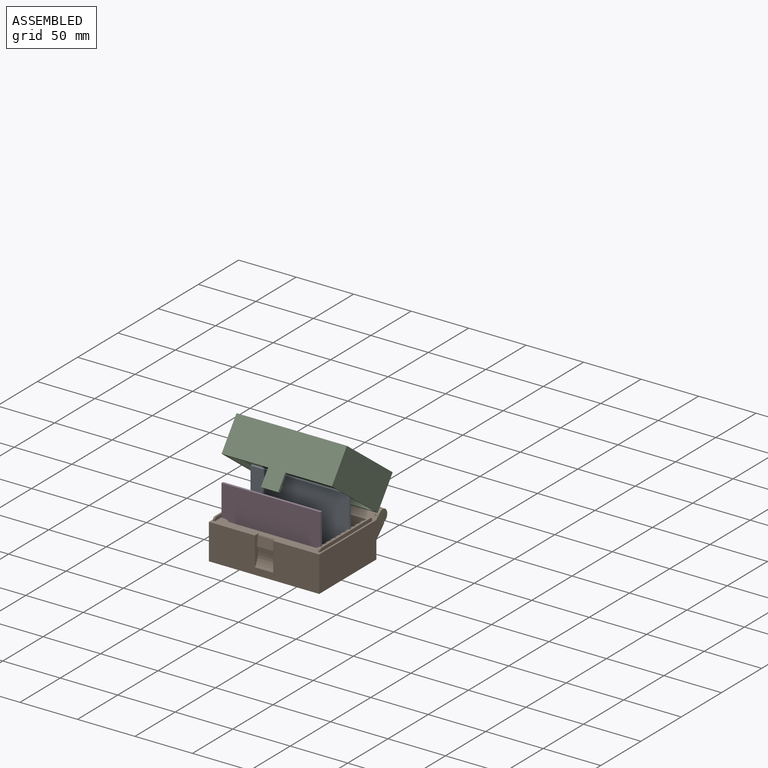
[diagram: assembled view]
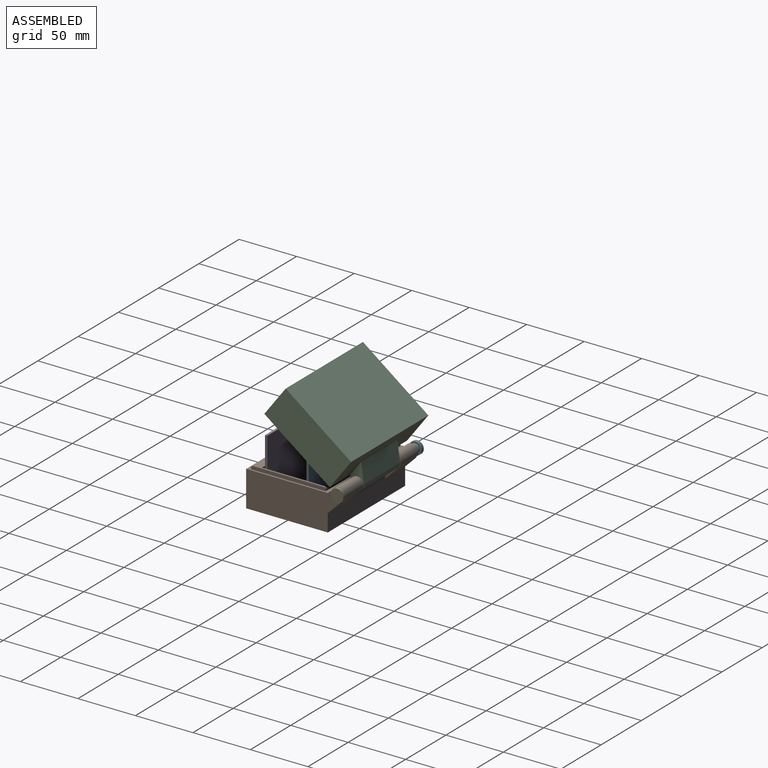
[diagram: assembled view, second angle]
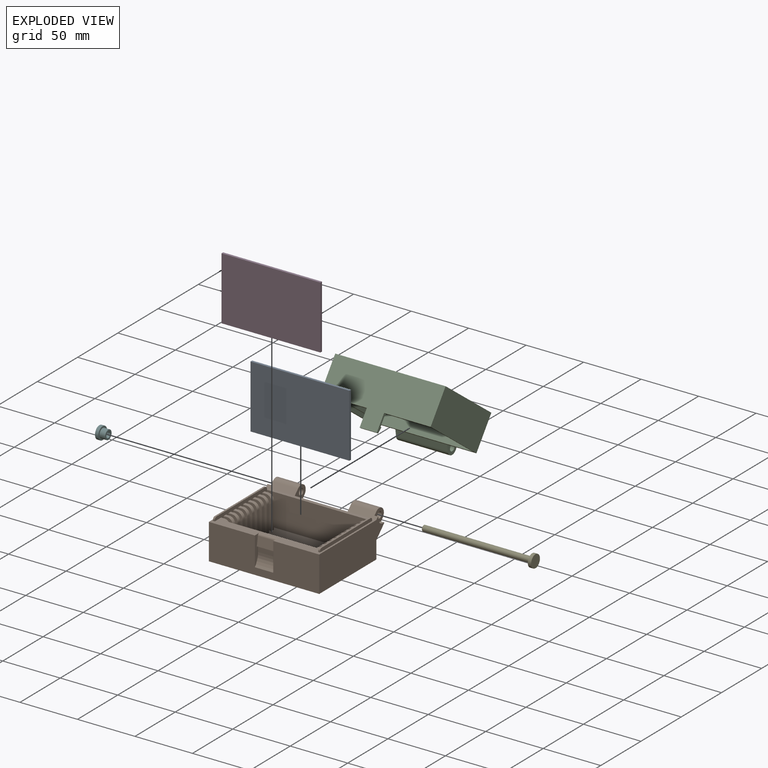
[diagram: exploded view]
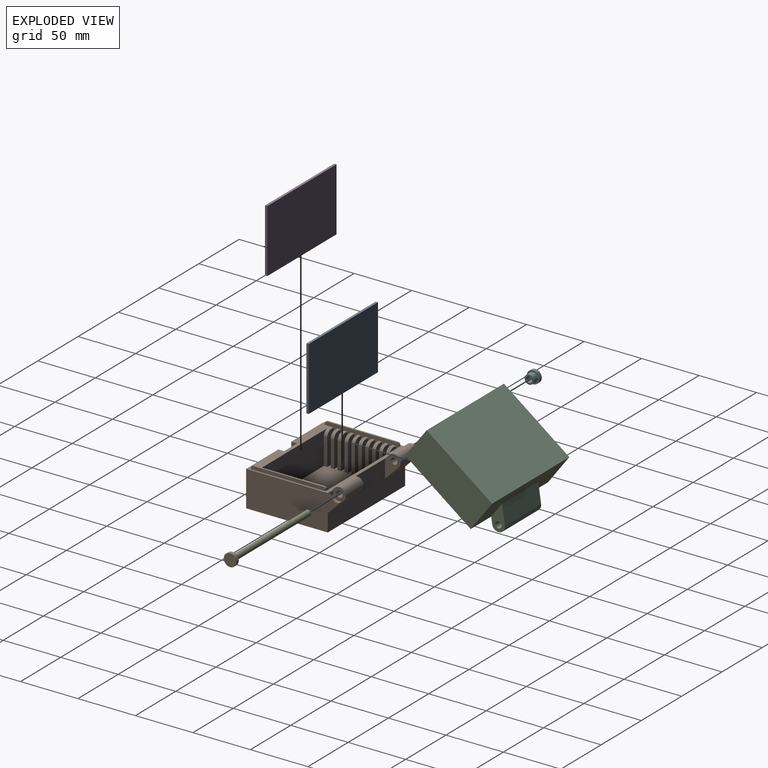
[diagram: exploded view, second angle]
ASSEMBLY  parts=6 mates=5
PART A: 6 faces, bbox 86x55x2 mm
  f0: plane 55x2mm, normal (1,0,0), area 110mm2, adj f1,f3,f4,f5
  f1: plane 86x2mm, normal (0,1,0), area 172mm2, adj f0,f2,f4,f5
  f2: plane 55x2mm, normal (-1,0,0), area 110mm2, adj f1,f3,f4,f5
  f3: plane 86x2mm, normal (0,-1,0), area 172mm2, adj f0,f2,f4,f5
  f4: plane 86x55mm, normal (0,0,1), area 4730mm2, adj f0,f1,f2,f3
  f5: plane 86x55mm, normal (0,0,-1), area 4730mm2, adj f0,f1,f2,f3
PART B: 146 faces, bbox 96x84.6x36.7 mm
  f0: plane 25x5.71mm, normal (1,0,0), area 80.3mm2, adj f1,f2,f3,f122,f123,f124,f125
  f1: plane 16x5mm, normal (0,-1,0), area 80mm2, adj f0,f121,f123,f125
  f2: plane 96x71mm, normal (0,0,1), area 1148.3mm2, adj f0,f3,f23,f24,f25,f26,f27,f28
  f3: plane 96x31mm, normal (0,-1,0), area 2576mm2, adj f0,f2,f28,f29,f31,f121,f125
  f4: plane 3x3mm, normal (0,0,1), area 9mm2, adj f24,f73,f74,f131
  f5: plane 3x3mm, normal (0,0,1), area 9mm2, adj f24,f76,f77,f130
  f6: plane 3x3mm, normal (0,0,1), area 9mm2, adj f24,f64,f65,f134
  f7: plane 3x3mm, normal (0,0,1), area 9mm2, adj f24,f87,f89,f126
  f8: plane 3x3mm, normal (0,0,1), area 9mm2, adj f24,f61,f62,f135
  f9: plane 3x3mm, normal (0,0,1), area 9mm2, adj f24,f84,f86,f127
  f10: plane 3x3mm, normal (0,0,1), area 9mm2, adj f24,f67,f69,f133
  f11: plane 3x3mm, normal (0,0,1), area 9mm2, adj f24,f81,f82,f128
  f12: plane 3x3mm, normal (0,0,1), area 9mm2, adj f24,f70,f72,f132
  f13: plane 3x3mm, normal (0,0,1), area 9mm2, adj f26,f58,f60,f136
  f14: plane 3x3mm, normal (0,0,1), area 9mm2, adj f26,f55,f57,f137
  f15: plane 3x3mm, normal (0,0,1), area 9mm2, adj f26,f52,f54,f138
  f16: plane 3x3mm, normal (0,0,1), area 9mm2, adj f26,f49,f51,f139
  f17: plane 3x3mm, normal (0,0,1), area 9mm2, adj f26,f46,f48,f140
  f18: plane 3x3mm, normal (0,0,1), area 9mm2, adj f26,f43,f45,f141
  f19: plane 3x3mm, normal (0,0,1), area 9mm2, adj f26,f40,f42,f142
  f20: plane 3x3mm, normal (0,0,1), area 9mm2, adj f26,f37,f39,f143
  f21: plane 3x3mm, normal (0,0,1), area 9mm2, adj f26,f34,f36,f144
  f22: cylinder r=2.75mm len=17mm, axis (-1,0,0), area 293.7mm2, adj f102,f108
  f23: plane 96x31mm, normal (0,1,0), area 2186mm2, adj f2,f28,f29,f31,f92,f94,f100,f102
  f24: plane 64.9x31mm, normal (-1,0,0), area 1032.7mm2, adj f2,f4,f5,f6,f7,f8,f9,f10
  f25: plane 84x28mm, normal (0,1,0), area 2082.7mm2, adj f2,f30,f33,f80,f129,f145
  f26: plane 64.9x31mm, normal (1,0,0), area 1032.7mm2, adj f2,f13,f14,f15,f16,f17,f18,f19
  f27: plane 90x28mm, normal (0,-1,0), area 2520mm2, adj f2,f24,f26,f30
  f28: plane 80.73x32.83mm, normal (1,0,0), area 2276.8mm2, adj f2,f3,f23,f31,f91,f92,f95,f97
  f29: plane 80.73x32.83mm, normal (-1,0,0), area 2276.8mm2, adj f2,f3,f23,f31,f99,f100,f103,f105
  f30: plane 90x60mm, normal (0,0,1), area 4920mm2, adj f24,f25,f26,f27,f32,f33,f34,f35
  f31: plane 96x71mm, normal (0,0,-1), area 6816mm2, adj f3,f23,f28,f29
  f32: plane 28x8mm, normal (0,1,0), area 218.6mm2, adj f2,f26,f30,f33,f145
  f33: plane 23x3mm, normal (1,0,0), area 69mm2, adj f25,f30,f32,f145
  f34: plane 28x8mm, normal (0,-1,0), area 218.6mm2, adj f21,f26,f30,f35,f144
  f35: plane 23x3mm, normal (1,0,0), area 69mm2, adj f30,f34,f36,f144
  f36: plane 28x8mm, normal (0,1,0), area 218.6mm2, adj f21,f26,f30,f35,f144
  f37: plane 28x8mm, normal (0,-1,0), area 218.6mm2, adj f20,f26,f30,f38,f143
  f38: plane 23x3mm, normal (1,0,0), area 69mm2, adj f30,f37,f39,f143
  f39: plane 28x8mm, normal (0,1,0), area 218.6mm2, adj f20,f26,f30,f38,f143
  f40: plane 28x8mm, normal (0,-1,0), area 218.6mm2, adj f19,f26,f30,f41,f142
  f41: plane 23x3mm, normal (1,0,0), area 69mm2, adj f30,f40,f42,f142
  f42: plane 28x8mm, normal (0,1,0), area 218.6mm2, adj f19,f26,f30,f41,f142
  f43: plane 28x8mm, normal (0,-1,0), area 218.6mm2, adj f18,f26,f30,f44,f141
  f44: plane 23x3mm, normal (1,0,0), area 69mm2, adj f30,f43,f45,f141
  f45: plane 28x8mm, normal (0,1,0), area 218.6mm2, adj f18,f26,f30,f44,f141
  f46: plane 28x8mm, normal (0,-1,0), area 218.6mm2, adj f17,f26,f30,f47,f140
  f47: plane 23x3mm, normal (1,0,0), area 69mm2, adj f30,f46,f48,f140
  f48: plane 28x8mm, normal (0,1,0), area 218.6mm2, adj f17,f26,f30,f47,f140
  f49: plane 28x8mm, normal (0,-1,0), area 218.6mm2, adj f16,f26,f30,f50,f139
  f50: plane 23x3mm, normal (1,0,0), area 69mm2, adj f30,f49,f51,f139
  f51: plane 28x8mm, normal (0,1,0), area 218.6mm2, adj f16,f26,f30,f50,f139
  f52: plane 28x8mm, normal (0,-1,0), area 218.6mm2, adj f15,f26,f30,f53,f138
  f53: plane 23x3mm, normal (1,0,0), area 69mm2, adj f30,f52,f54,f138
  f54: plane 28x8mm, normal (0,1,0), area 218.6mm2, adj f15,f26,f30,f53,f138
  f55: plane 28x8mm, normal (0,-1,0), area 218.6mm2, adj f14,f26,f30,f56,f137
  f56: plane 23x3mm, normal (1,0,0), area 69mm2, adj f30,f55,f57,f137
  f57: plane 28x8mm, normal (0,1,0), area 218.6mm2, adj f14,f26,f30,f56,f137
  f58: plane 28x8mm, normal (0,-1,0), area 218.6mm2, adj f13,f26,f30,f59,f136
  f59: plane 23x3mm, normal (1,0,0), area 69mm2, adj f30,f58,f60,f136
  f60: plane 28x8mm, normal (0,1,0), area 218.6mm2, adj f13,f26,f30,f59,f136
  f61: plane 28x8mm, normal (0,-1,0), area 218.6mm2, adj f8,f24,f30,f63,f135
  f62: plane 28x8mm, normal (0,1,0), area 218.6mm2, adj f8,f24,f30,f63,f135
  f63: plane 23x3mm, normal (-1,0,0), area 69mm2, adj f30,f61,f62,f135
  f64: plane 28x8mm, normal (0,-1,0), area 218.6mm2, adj f6,f24,f30,f66,f134
  f65: plane 28x8mm, normal (0,1,0), area 218.6mm2, adj f6,f24,f30,f66,f134
  f66: plane 23x3mm, normal (-1,0,0), area 69mm2, adj f30,f64,f65,f134
  f67: plane 28x8mm, normal (0,1,0), area 218.6mm2, adj f10,f24,f30,f68,f133
  f68: plane 23x3mm, normal (-1,0,0), area 69mm2, adj f30,f67,f69,f133
  f69: plane 28x8mm, normal (0,-1,0), area 218.6mm2, adj f10,f24,f30,f68,f133
  f70: plane 28x8mm, normal (0,1,0), area 218.6mm2, adj f12,f24,f30,f71,f132
  f71: plane 23x3mm, normal (-1,0,0), area 69mm2, adj f30,f70,f72,f132
  f72: plane 28x8mm, normal (0,-1,0), area 218.6mm2, adj f12,f24,f30,f71,f132
  f73: plane 28x8mm, normal (0,-1,0), area 218.6mm2, adj f4,f24,f30,f75,f131
  f74: plane 28x8mm, normal (0,1,0), area 218.6mm2, adj f4,f24,f30,f75,f131
  f75: plane 23x3mm, normal (-1,0,0), area 69mm2, adj f30,f73,f74,f131
  f76: plane 28x8mm, normal (0,-1,0), area 218.6mm2, adj f5,f24,f30,f78,f130
  f77: plane 28x8mm, normal (0,1,0), area 218.6mm2, adj f5,f24,f30,f78,f130
  f78: plane 23x3mm, normal (-1,0,0), area 69mm2, adj f30,f76,f77,f130
  f79: plane 28x8mm, normal (0,1,0), area 218.6mm2, adj f2,f24,f30,f80,f129
  f80: plane 23x3mm, normal (-1,0,0), area 69mm2, adj f25,f30,f79,f129
  f81: plane 28x8mm, normal (0,-1,0), area 218.6mm2, adj f11,f24,f30,f83,f128
  f82: plane 28x8mm, normal (0,1,0), area 218.6mm2, adj f11,f24,f30,f83,f128
  f83: plane 23x3mm, normal (-1,0,0), area 69mm2, adj f30,f81,f82,f128
  f84: plane 28x8mm, normal (0,1,0), area 218.6mm2, adj f9,f24,f30,f85,f127
  f85: plane 23x3mm, normal (-1,0,0), area 69mm2, adj f30,f84,f86,f127
  f86: plane 28x8mm, normal (0,-1,0), area 218.6mm2, adj f9,f24,f30,f85,f127
  f87: plane 28x8mm, normal (0,1,0), area 218.6mm2, adj f7,f24,f30,f88,f126
  f88: plane 23x3mm, normal (-1,0,0), area 69mm2, adj f30,f87,f89,f126
  f89: plane 28x8mm, normal (0,-1,0), area 218.6mm2, adj f7,f24,f30,f88,f126
  f90: cylinder r=2.75mm len=22mm, axis (1,0,0), area 380.1mm2, adj f94,f96
  f91: plane 25x4.05mm, normal (0,-0.71,0.71), area 133.2mm2, adj f2,f28,f93,f94,f96,f97
  f92: plane 25x11.95mm, normal (0,0.71,-0.71), area 412.5mm2, adj f23,f28,f93,f94,f96,f98
  f93: cylinder r=5.59mm len=22mm, axis (1,0,0), area 386.1mm2, adj f91,f92,f94,f96
  f94: plane 21.49x13.59mm, normal (-1,0,0), area 151.7mm2, adj f23,f90,f91,f92,f93
  f95: cylinder r=5.59mm len=6.72mm, axis (1,0,0), area 33.2mm2, adj f28,f96,f97,f98
  f96: plane 11.9x11.9mm, normal (1,0,0), area 75.8mm2, adj f90,f91,f92,f93,f95,f97,f98
  f97: cylinder r=0.5mm len=3mm, axis (1,0,0), area 3.8mm2, adj f28,f91,f95,f96
  f98: cylinder r=0.5mm len=3mm, axis (1,0,0), area 3.8mm2, adj f28,f92,f95,f96
  f99: plane 25x4.05mm, normal (0,-0.71,0.71), area 133.2mm2, adj f2,f29,f101,f102,f104,f105
  f100: plane 25x11.95mm, normal (0,0.71,-0.71), area 412.5mm2, adj f23,f29,f101,f102,f104,f106
  f101: cylinder r=5.59mm len=22mm, axis (-1,0,0), area 386.1mm2, adj f99,f100,f102,f104
  f102: plane 21.49x13.59mm, normal (1,0,0), area 151.7mm2, adj f22,f23,f99,f100,f101
  f103: cylinder r=5.59mm len=6.72mm, axis (-1,0,0), area 33.2mm2, adj f29,f104,f105,f106
  f104: plane 11.9x11.9mm, normal (-1,0,0), area 48.1mm2, adj f99,f100,f101,f103,f105,f106,f107
  f105: cylinder r=0.5mm len=3mm, axis (-1,0,0), area 3.8mm2, adj f29,f99,f103,f104
  f106: cylinder r=0.5mm len=3mm, axis (-1,0,0), area 3.8mm2, adj f29,f100,f103,f104
  f107: cylinder r=4.05mm len=8.1mm, axis (-1,0,0), area 127.2mm2, adj f104,f108
  f108: plane 8.1x8.1mm, normal (-1,0,0), area 27.8mm2, adj f22,f107
  f109: plane 1.5x1mm, normal (0,1,0), area 1.5mm2, adj f2,f26,f110,f120
  f110: plane 64.8x3mm, normal (-1,0,0), area 192.7mm2, adj f2,f109,f111,f112,f119,f120
  f111: plane 1.5x1mm, normal (0,-1,0), area 1.5mm2, adj f2,f26,f110,f119
  f112: plane 60.8x1.5mm, normal (0,0,1), area 91.2mm2, adj f26,f110,f119,f120
  f113: plane 64.8x3mm, normal (1,0,0), area 192.7mm2, adj f2,f114,f115,f116,f117,f118
  f114: plane 1.5x1mm, normal (0,1,0), area 1.5mm2, adj f2,f24,f113,f118
  f115: plane 1.5x1mm, normal (0,-1,0), area 1.5mm2, adj f2,f24,f113,f117
  f116: plane 60.8x1.5mm, normal (0,0,1), area 91.2mm2, adj f24,f113,f117,f118
  f117: cylinder r=2mm len=2mm, axis (-1,0,0), area 4.7mm2, adj f24,f113,f115,f116
  f118: cylinder r=2mm len=2mm, axis (1,0,0), area 4.7mm2, adj f24,f113,f114,f116
  f119: cylinder r=2mm len=2mm, axis (-1,0,0), area 4.7mm2, adj f26,f110,f111,f112
  f120: cylinder r=2mm len=2mm, axis (1,0,0), area 4.7mm2, adj f26,f109,f110,f112
  f121: plane 25x5.71mm, normal (-1,0,0), area 80.3mm2, adj f1,f2,f3,f122,f123,f124,f125
  f122: plane 16x7.81mm, normal (0,-0.99,0.16), area 126.5mm2, adj f0,f121,f123,f124
  f123: plane 16x1.5mm, normal (0,0,-1), area 24mm2, adj f0,f1,f121,f122
  f124: cylinder r=2mm len=16mm, axis (-1,0,0), area 45.3mm2, adj f0,f2,f121,f122
  f125: cylinder r=15.78mm len=16mm, axis (-1,0,0), area 183.8mm2, adj f0,f1,f3,f121
  f126: cylinder r=5mm len=5mm, axis (0,1,0), area 23.6mm2, adj f7,f87,f88,f89
  f127: cylinder r=5mm len=5mm, axis (0,1,0), area 23.6mm2, adj f9,f84,f85,f86
  f128: cylinder r=5mm len=5mm, axis (0,1,0), area 23.6mm2, adj f11,f81,f82,f83
  f129: cylinder r=5mm len=5mm, axis (0,1,0), area 23.6mm2, adj f2,f25,f79,f80
  f130: cylinder r=5mm len=5mm, axis (0,1,0), area 23.6mm2, adj f5,f76,f77,f78
  f131: cylinder r=5mm len=5mm, axis (0,1,0), area 23.6mm2, adj f4,f73,f74,f75
  f132: cylinder r=5mm len=5mm, axis (0,1,0), area 23.6mm2, adj f12,f70,f71,f72
  f133: cylinder r=5mm len=5mm, axis (0,1,0), area 23.6mm2, adj f10,f67,f68,f69
  f134: cylinder r=5mm len=5mm, axis (0,1,0), area 23.6mm2, adj f6,f64,f65,f66
  f135: cylinder r=5mm len=5mm, axis (0,1,0), area 23.6mm2, adj f8,f61,f62,f63
  f136: cylinder r=5mm len=5mm, axis (0,-1,0), area 23.6mm2, adj f13,f58,f59,f60
  f137: cylinder r=5mm len=5mm, axis (0,-1,0), area 23.6mm2, adj f14,f55,f56,f57
  f138: cylinder r=5mm len=5mm, axis (0,-1,0), area 23.6mm2, adj f15,f52,f53,f54
  f139: cylinder r=5mm len=5mm, axis (0,-1,0), area 23.6mm2, adj f16,f49,f50,f51
  f140: cylinder r=5mm len=5mm, axis (0,-1,0), area 23.6mm2, adj f17,f46,f47,f48
  f141: cylinder r=5mm len=5mm, axis (0,-1,0), area 23.6mm2, adj f18,f43,f44,f45
  f142: cylinder r=5mm len=5mm, axis (0,-1,0), area 23.6mm2, adj f19,f40,f41,f42
  f143: cylinder r=5mm len=5mm, axis (0,-1,0), area 23.6mm2, adj f20,f37,f38,f39
  f144: cylinder r=5mm len=5mm, axis (0,-1,0), area 23.6mm2, adj f21,f34,f35,f36
  f145: cylinder r=5mm len=5mm, axis (0,-1,0), area 23.6mm2, adj f2,f25,f32,f33
PART C: 34 faces, bbox 96x84.6x46 mm
  f0: plane 96x71mm, normal (0,0,1), area 687mm2, adj f4,f5,f6,f7,f13,f15,f16,f25
  f1: plane 65x27mm, normal (-1,0,0), area 1595.2mm2, adj f3,f4,f16,f18,f21,f22
  f2: plane 65x27mm, normal (1,0,0), area 1595.2mm2, adj f3,f4,f16,f20,f23,f24
  f3: plane 90x65mm, normal (0,0,1), area 5850mm2, adj f1,f2,f4,f16
  f4: plane 93.6x28mm, normal (0,-1,0), area 2523.2mm2, adj f0,f1,f2,f3,f17,f19,f22,f23
  f5: plane 71x31mm, normal (1,0,0), area 2201mm2, adj f0,f6,f8,f15
  f6: plane 96x31mm, normal (0,1,0), area 2265mm2, adj f0,f5,f7,f8,f9,f10,f12
  f7: plane 71x31mm, normal (-1,0,0), area 2201mm2, adj f0,f6,f8,f15
  f8: plane 96x71mm, normal (0,0,-1), area 6816mm2, adj f5,f6,f7,f15
  f9: plane 21.49x13.59mm, normal (1,0,0), area 151.7mm2, adj f6,f11,f12,f13,f14
  f10: plane 21.49x13.59mm, normal (-1,0,0), area 151.7mm2, adj f6,f11,f12,f13,f14
  f11: cylinder r=5.59mm len=45mm, axis (1,0,0), area 789.7mm2, adj f9,f10,f12,f13
  f12: plane 45x11.95mm, normal (0,0.71,-0.71), area 760.5mm2, adj f6,f9,f10,f11
  f13: plane 45x4.05mm, normal (0,-0.71,0.71), area 257.7mm2, adj f0,f9,f10,f11
  f14: cylinder r=2.75mm len=45mm, axis (1,0,0), area 777.5mm2, adj f9,f10
  f15: plane 96x46mm, normal (0,-1,0), area 3201mm2, adj f0,f5,f7,f8,f25,f26,f28
  f16: plane 93.6x28mm, normal (0,1,0), area 2523.2mm2, adj f0,f1,f2,f3,f17,f19,f21,f24
  f17: plane 65x3.3mm, normal (-1,0,0), area 211.8mm2, adj f4,f16,f18,f21,f22,f32
  f18: plane 60x1.6mm, normal (0,0,1), area 96mm2, adj f1,f17,f21,f22
  f19: plane 65x3.3mm, normal (1,0,0), area 211.8mm2, adj f4,f16,f20,f23,f24,f33
  f20: plane 60x1.6mm, normal (0,0,1), area 96mm2, adj f2,f19,f23,f24
  f21: cylinder r=2.5mm len=2.5mm, axis (-1,0,0), area 6.3mm2, adj f1,f16,f17,f18
  f22: cylinder r=2.5mm len=2.5mm, axis (-1,0,0), area 6.3mm2, adj f1,f4,f17,f18
  f23: cylinder r=2.5mm len=2.5mm, axis (1,0,0), area 6.3mm2, adj f2,f4,f19,f20
  f24: cylinder r=2.5mm len=2.5mm, axis (1,0,0), area 6.3mm2, adj f2,f16,f19,f20
  f25: plane 15x3.2mm, normal (-1,0,0), area 33.7mm2, adj f0,f15,f27,f28,f29,f30,f31
  f26: plane 15x3.2mm, normal (1,0,0), area 33.7mm2, adj f0,f15,f27,f28,f29,f30,f31
  f27: plane 15x7.76mm, normal (0,1,0), area 116.5mm2, adj f25,f26,f30,f31
  f28: plane 15x2mm, normal (0,0,1), area 30mm2, adj f15,f25,f26,f29
  f29: plane 15x5mm, normal (0,0.97,0.23), area 77.1mm2, adj f25,f26,f28,f30
  f30: plane 15x1.2mm, normal (0,0,-1), area 18mm2, adj f25,f26,f27,f29
  f31: cylinder r=3mm len=15mm, axis (-1,0,0), area 37.8mm2, adj f16,f25,f26,f27
  f32: plane 65x0.2mm, normal (-0.71,0,0.71), area 18.4mm2, adj f0,f4,f16,f17
  f33: plane 65x0.2mm, normal (0.71,0,0.71), area 18.4mm2, adj f0,f4,f16,f19
PART D: same geometry as A
PART E: 5 faces, bbox 11x11x97.1 mm
  f0: cylinder r=2.5mm len=94.2mm, axis (0,0,-1), area 1479.7mm2, adj f1,f3
  f1: plane 5x5mm, normal (0,0,1), area 19.6mm2, adj f0
  f2: cylinder r=5.5mm len=11mm, axis (0,0,-1), area 100.2mm2, adj f3,f4
  f3: plane 11x11mm, normal (0,0,1), area 75.4mm2, adj f0,f2
  f4: plane 11x11mm, normal (0,0,-1), area 95mm2, adj f2
PART F: 7 faces, bbox 11x11x7.8 mm
  f0: cylinder r=5.5mm len=11mm, axis (0,0,-1), area 100.2mm2, adj f1,f2
  f1: plane 11x11mm, normal (0,0,1), area 44.8mm2, adj f0,f4
  f2: plane 11x11mm, normal (0,0,-1), area 95mm2, adj f0
  f3: cylinder r=2.5mm len=5mm, axis (0,0,-1), area 77mm2, adj f5,f6
  f4: cylinder r=4mm len=8mm, axis (0,0,-1), area 123.2mm2, adj f1,f5
  f5: plane 8x8mm, normal (0,0,1), area 30.6mm2, adj f3,f4
  f6: plane 5x5mm, normal (0,0,1), area 19.6mm2, adj f3
PLACE A rot(axis=(1,0,0),90deg) t=(-26.97,-33.12,27.63)mm
PLACE B t=(-24.97,-44.62,0.13)mm fixed
PLACE C rot(axis=(0,-0.95,0.32),180deg) t=(-24.97,-19.61,75.29)mm
PLACE D rot(axis=(1,0,0),90deg) t=(-26.97,-69.12,27.63)mm
PLACE E rot(axis=(0.71,0,-0.71),180deg) t=(23.03,-3.62,28.23)mm
PLACE F rot(axis=(0.58,0.58,0.58),120deg) t=(-76.97,-3.62,28.23)mm
MATE fastened D.f3 <-> B.f30  axis (0,0,-1) through (-69.97,-70.12,0.13)mm
MATE fastened A.f3 <-> B.f30  axis (0,0,-1) through (-69.97,-34.12,0.13)mm
MATE revolute C.f11 <-> B.f22  axis (1,0,0) through (-2.47,-3.62,28.23)mm
MATE revolute F.f4 <-> E.f0  axis (1,0,0) through (-74.07,-3.62,28.23)mm
MATE revolute E.f0 <-> B.f22  axis (-1,0,0) through (20.13,-3.62,28.23)mm
